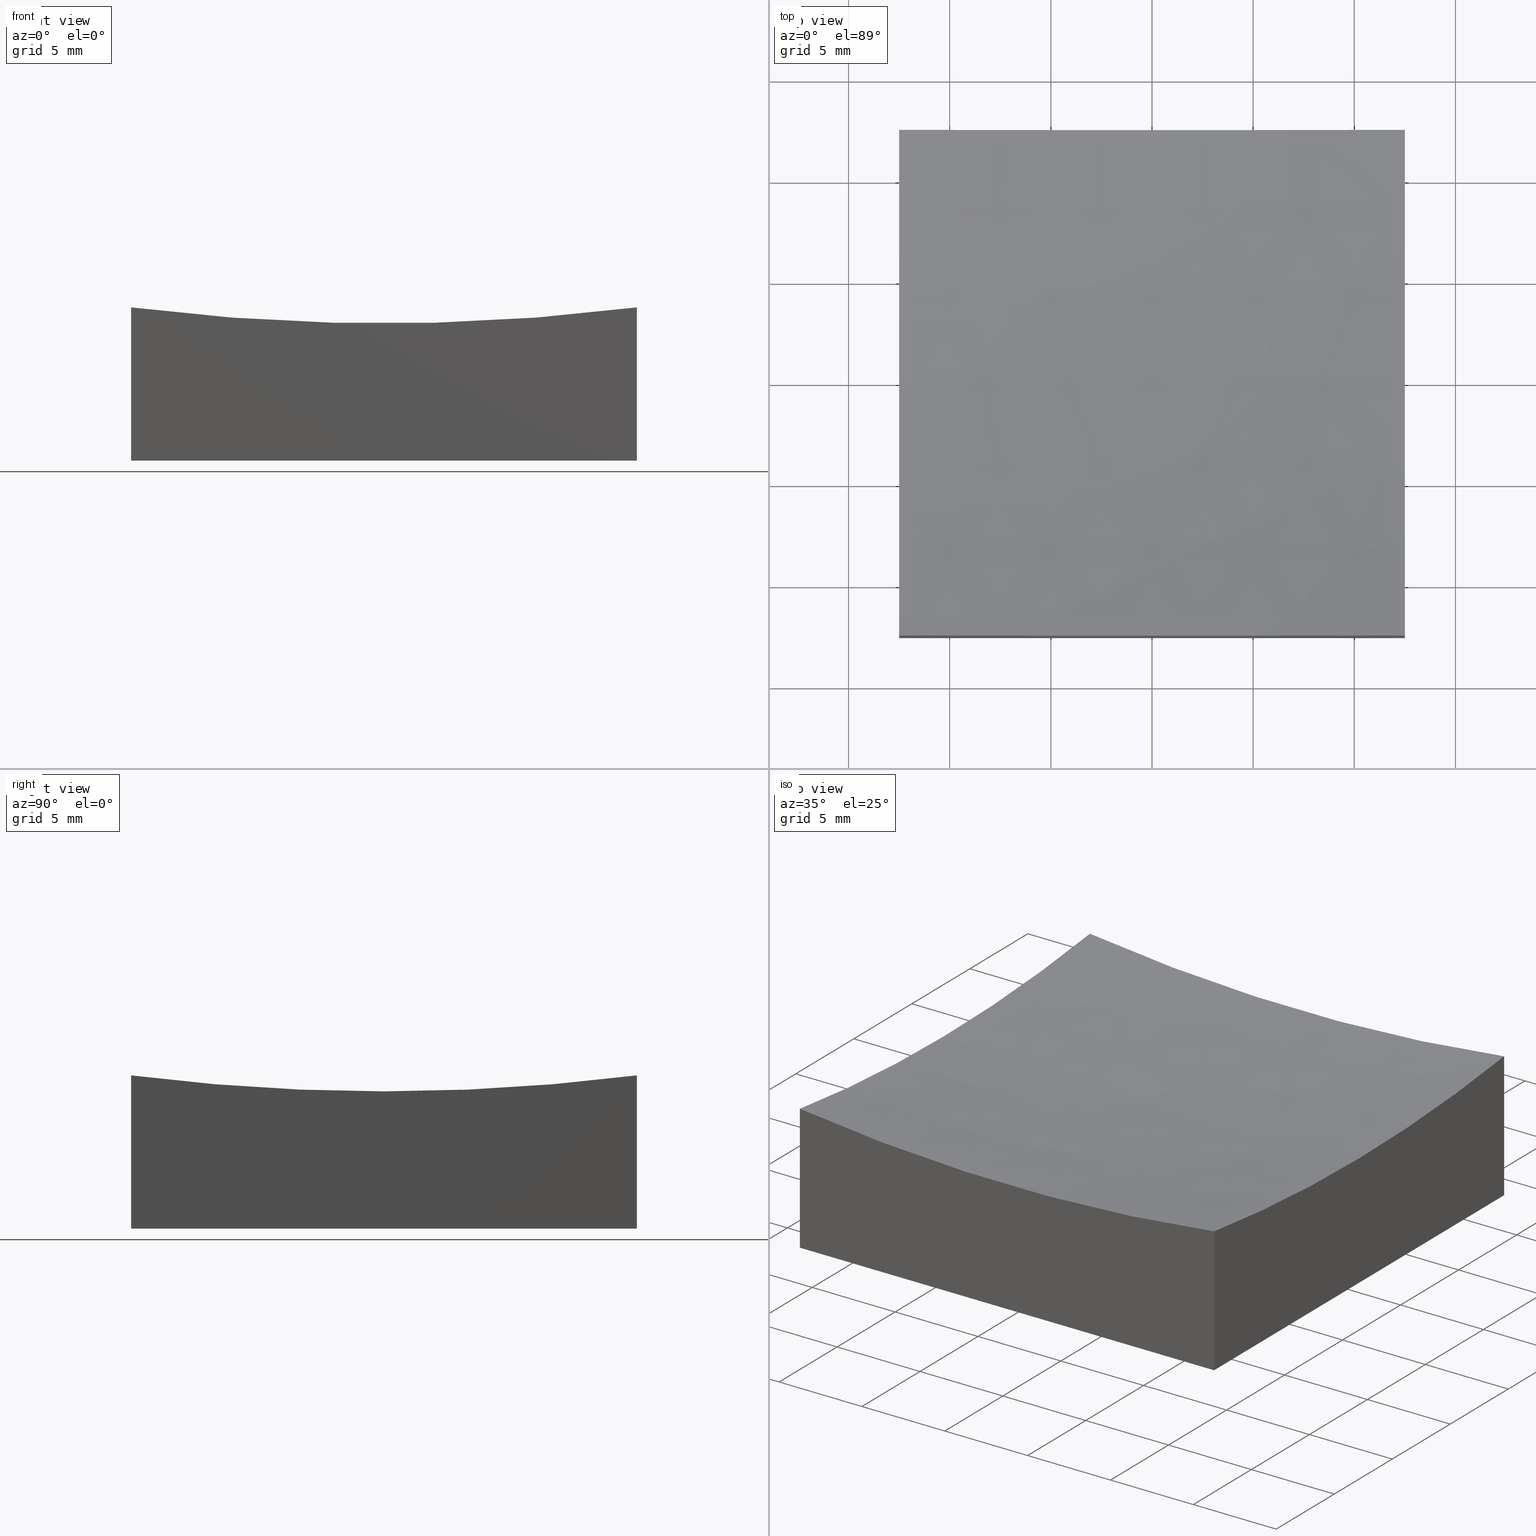
[diagram: canonical four-view strip — front | top / right | iso, engineering-drawing reading convention]
A machine part, canonical four-view strip (front | top / right | iso — engineering-drawing reading convention). The complete STEP part file that produces these views, byte-faithful:
ISO-10303-21;
HEADER;
FILE_DESCRIPTION (( 'STEP AP214' ),
    '1' );
FILE_NAME ('270036.STEP',
    '2020-06-05T06:14:06',
    ( '' ),
    ( '' ),
    'SwSTEP 2.0',
    'SolidWorks 2019',
    '' );
FILE_SCHEMA (( 'AUTOMOTIVE_DESIGN' ));
ENDSEC;

DATA;
#1 = PLANE ( 'NONE',  #242 ) ;
#2 = EDGE_CURVE ( 'NONE', #195, #65, #44, .T. ) ;
#3 = VERTEX_POINT ( 'NONE', #179 ) ;
#4 = CLOSED_SHELL ( 'NONE', ( #208, #218, #223, #40, #145, #162, #36 ) ) ;
#5 = ORIENTED_EDGE ( 'NONE', *, *, #157, .T. ) ;
#6 = PRESENTATION_STYLE_ASSIGNMENT (( #235 ) ) ;
#7 = EDGE_CURVE ( 'NONE', #63, #31, #244, .T. ) ;
#8 = FACE_OUTER_BOUND ( 'NONE', #120, .T. ) ;
#9 = PRESENTATION_LAYER_ASSIGNMENT (  '', '', ( #66 ) ) ;
#10 = DIRECTION ( 'NONE',  ( 0.0000000000000000000, -0.0000000000000000000, 1.000000000000000000 ) ) ;
#11 = DIRECTION ( 'NONE',  ( 1.000000000000000000, 0.0000000000000000000, 0.0000000000000000000 ) ) ;
#12 = VERTEX_POINT ( 'NONE', #100 ) ;
#13 = EDGE_LOOP ( 'NONE', ( #98, #95, #137, #45, #203 ) ) ;
#14 = DIRECTION ( 'NONE',  ( -1.398749534750525041E-16, 1.000000000000000000, 0.0000000000000000000 ) ) ;
#15 = AXIS2_PLACEMENT_3D ( 'NONE', #226, #209, #14 ) ;
#16 = DIRECTION ( 'NONE',  ( -1.387778780781445676E-16, 1.000000000000000000, 0.0000000000000000000 ) ) ;
#17 = FACE_OUTER_BOUND ( 'NONE', #85, .T. ) ;
#18 = DIRECTION ( 'NONE',  ( -1.387778780781445676E-16, 1.000000000000000000, 0.0000000000000000000 ) ) ;
#19 = APPLICATION_CONTEXT ( 'automotive_design' ) ;
#20 = SPHERICAL_SURFACE ( 'NONE', #39, 100.0000000000000142 ) ;
#21 = EDGE_LOOP ( 'NONE', ( #22, #83, #243, #118 ) ) ;
#22 = ORIENTED_EDGE ( 'NONE', *, *, #2, .T. ) ;
#23 = DIRECTION ( 'NONE',  ( 0.0000000000000000000, 0.0000000000000000000, 1.000000000000000000 ) ) ;
#24 = APPLICATION_PROTOCOL_DEFINITION ( 'draft international standard', 'automotive_design', 1998, #75 ) ;
#25 = PLANE ( 'NONE',  #50 ) ;
#26 = VERTEX_POINT ( 'NONE', #237 ) ;
#27 = EDGE_CURVE ( 'NONE', #195, #63, #135, .T. ) ;
#28 = ORIENTED_EDGE ( 'NONE', *, *, #159, .T. ) ;
#29 = FACE_OUTER_BOUND ( 'NONE', #174, .T. ) ;
#30 = AXIS2_PLACEMENT_3D ( 'NONE', #89, #124, #142 ) ;
#31 = VERTEX_POINT ( 'NONE', #67 ) ;
#32 = DIRECTION ( 'NONE',  ( 1.000000000000000000, 1.387778780781445676E-16, -0.0000000000000000000 ) ) ;
#33 = CARTESIAN_POINT ( 'NONE',  ( -12.49999999999999645, -12.50000000000000000, 20.00000000000000000 ) ) ;
#34 = FILL_AREA_STYLE_COLOUR ( '', #131 ) ;
#35 = CIRCLE ( 'NONE', #194, 99.21567416492216296 ) ;
#36 = ADVANCED_FACE ( 'NONE', ( #29 ), #225, .F. ) ;
#37 = CARTESIAN_POINT ( 'NONE',  ( 1.298125607096194621E-14, 0.0000000000000000000, 106.0000000000000142 ) ) ;
#38 = DIRECTION ( 'NONE',  ( -0.0000000000000000000, -0.0000000000000000000, -1.000000000000000000 ) ) ;
#39 = AXIS2_PLACEMENT_3D ( 'NONE', #37, #69, #126 ) ;
#40 = ADVANCED_FACE ( 'NONE', ( #8 ), #25, .F. ) ;
#41 = PRESENTATION_LAYER_ASSIGNMENT (  '', '', ( #148 ) ) ;
#42 =( NAMED_UNIT ( * ) PLANE_ANGLE_UNIT ( ) SI_UNIT ( $, .RADIAN. ) );
#43 = FILL_AREA_STYLE_COLOUR ( '', #236 ) ;
#44 = LINE ( 'NONE', #116, #204 ) ;
#45 = ORIENTED_EDGE ( 'NONE', *, *, #59, .F. ) ;
#46 = CIRCLE ( 'NONE', #30, 100.0000000000000142 ) ;
#47 = ORIENTED_EDGE ( 'NONE', *, *, #27, .T. ) ;
#48 = ORIENTED_EDGE ( 'NONE', *, *, #55, .T. ) ;
#49 = ORIENTED_EDGE ( 'NONE', *, *, #183, .T. ) ;
#50 = AXIS2_PLACEMENT_3D ( 'NONE', #155, #177, #10 ) ;
#51 = CARTESIAN_POINT ( 'NONE',  ( -12.49999999999999645, -12.50000000000000000, 0.0000000000000000000 ) ) ;
#52 = FACE_OUTER_BOUND ( 'NONE', #173, .T. ) ;
#53 = DIRECTION ( 'NONE',  ( 1.000000000000000000, 1.387778780781445676E-16, -0.0000000000000000000 ) ) ;
#54 = CARTESIAN_POINT ( 'NONE',  ( 12.50000000000000355, -12.50000000000000000, 20.00000000000000000 ) ) ;
#55 = EDGE_CURVE ( 'NONE', #160, #61, #216, .T. ) ;
#56 = CARTESIAN_POINT ( 'NONE',  ( 12.50000000000000178, 1.734723475976805714E-15, 106.0000000000000142 ) ) ;
#57 = LINE ( 'NONE', #207, #221 ) ;
#58 = DIRECTION ( 'NONE',  ( 1.000000000000000000, 1.387778780781445676E-16, -0.0000000000000000000 ) ) ;
#59 = EDGE_CURVE ( 'NONE', #201, #65, #164, .T. ) ;
#60 = PRODUCT_DEFINITION_FORMATION_WITH_SPECIFIED_SOURCE ( '�κ�', '', #111, .NOT_KNOWN. ) ;
#61 = VERTEX_POINT ( 'NONE', #68 ) ;
#62 = AXIS2_PLACEMENT_3D ( 'NONE', #125, #212, #169 ) ;
#63 = VERTEX_POINT ( 'NONE', #51 ) ;
#64 = VERTEX_POINT ( 'NONE', #139 ) ;
#65 = VERTEX_POINT ( 'NONE', #184 ) ;
#66 = STYLED_ITEM ( 'NONE', ( #6 ), #130 ) ;
#67 = CARTESIAN_POINT ( 'NONE',  ( 12.50000000000000355, -12.50000000000000000, 0.0000000000000000000 ) ) ;
#68 = CARTESIAN_POINT ( 'NONE',  ( -12.49999999999999822, 1.530808498934191521E-15, 6.784325835077840594 ) ) ;
#69 = DIRECTION ( 'NONE',  ( 0.0000000000000000000, 1.000000000000000000, 0.0000000000000000000 ) ) ;
#70 =( GEOMETRIC_REPRESENTATION_CONTEXT ( 3 ) GLOBAL_UNCERTAINTY_ASSIGNED_CONTEXT ( ( #152 ) ) GLOBAL_UNIT_ASSIGNED_CONTEXT ( ( #166, #229, #168 ) ) REPRESENTATION_CONTEXT ( 'NONE', 'WORKASPACE' ) );
#71 = CIRCLE ( 'NONE', #62, 99.21567416492216296 ) ;
#72 = CARTESIAN_POINT ( 'NONE',  ( -12.49999999999999822, -1.734723475976808672E-15, 106.0000000000000142 ) ) ;
#73 = DIRECTION ( 'NONE',  ( 1.000000000000000000, 1.387778780781445676E-16, -0.0000000000000000000 ) ) ;
#74 = DIRECTION ( 'NONE',  ( -1.398749534750525041E-16, 1.000000000000000000, 0.0000000000000000000 ) ) ;
#75 = APPLICATION_CONTEXT ( 'automotive_design' ) ;
#76 = CARTESIAN_POINT ( 'NONE',  ( -12.50000000000000000, 12.50000000000000000, 20.00000000000000000 ) ) ;
#77 = CIRCLE ( 'NONE', #213, 99.21567416492216296 ) ;
#78 = DIRECTION ( 'NONE',  ( -1.398749534750525041E-16, 1.000000000000000000, 0.0000000000000000000 ) ) ;
#79 = VECTOR ( 'NONE', #186, 1000.000000000000000 ) ;
#80 = CARTESIAN_POINT ( 'NONE',  ( 1.298125607096194621E-14, 0.0000000000000000000, 106.0000000000000142 ) ) ;
#81 = UNCERTAINTY_MEASURE_WITH_UNIT (LENGTH_MEASURE( 1.000000000000000082E-05 ), #163, 'distance_accuracy_value', 'NONE');
#82 = ORIENTED_EDGE ( 'NONE', *, *, #199, .F. ) ;
#83 = ORIENTED_EDGE ( 'NONE', *, *, #241, .T. ) ;
#84 = ORIENTED_EDGE ( 'NONE', *, *, #119, .F. ) ;
#85 = EDGE_LOOP ( 'NONE', ( #205, #49, #198, #28, #47 ) ) ;
#86 = FACE_OUTER_BOUND ( 'NONE', #13, .T. ) ;
#87 = AXIS2_PLACEMENT_3D ( 'NONE', #114, #23, #153 ) ;
#88 = EDGE_CURVE ( 'NONE', #3, #64, #146, .T. ) ;
#89 = CARTESIAN_POINT ( 'NONE',  ( 1.298125607096194621E-14, 0.0000000000000000000, 106.0000000000000142 ) ) ;
#90 = CARTESIAN_POINT ( 'NONE',  ( 0.0000000000000000000, 0.0000000000000000000, 0.0000000000000000000 ) ) ;
#91 = VECTOR ( 'NONE', #127, 1000.000000000000000 ) ;
#92 = CARTESIAN_POINT ( 'NONE',  ( -12.50000000000000000, 12.50000000000000000, 20.00000000000000000 ) ) ;
#93 = ORIENTED_EDGE ( 'NONE', *, *, #88, .T. ) ;
#94 = VECTOR ( 'NONE', #11, 1000.000000000000000 ) ;
#95 = ORIENTED_EDGE ( 'NONE', *, *, #199, .T. ) ;
#96 = PRODUCT_DEFINITION_CONTEXT ( 'detailed design', #19, 'design' ) ;
#97 = PRODUCT_CONTEXT ( 'NONE', #75, 'mechanical' ) ;
#98 = ORIENTED_EDGE ( 'NONE', *, *, #88, .F. ) ;
#99 = CARTESIAN_POINT ( 'NONE',  ( 1.298125607096194621E-14, 0.0000000000000000000, 106.0000000000000142 ) ) ;
#100 = CARTESIAN_POINT ( 'NONE',  ( -12.50000000000000000, 12.50000000000000000, 7.574901574852354713 ) ) ;
#101 = AXIS2_PLACEMENT_3D ( 'NONE', #228, #53, #16 ) ;
#102 = PRESENTATION_STYLE_ASSIGNMENT (( #143 ) ) ;
#103 = DIRECTION ( 'NONE',  ( 0.0000000000000000000, 1.000000000000000000, 0.0000000000000000000 ) ) ;
#104 = DIRECTION ( 'NONE',  ( 0.0000000000000000000, 0.0000000000000000000, -1.000000000000000000 ) ) ;
#105 = PRODUCT_RELATED_PRODUCT_CATEGORY ( 'part', '', ( #111 ) ) ;
#106 = FILL_AREA_STYLE ('',( #34 ) ) ;
#107 = FACE_OUTER_BOUND ( 'NONE', #21, .T. ) ;
#108 = AXIS2_PLACEMENT_3D ( 'NONE', #92, #233, #144 ) ;
#109 =( NAMED_UNIT ( * ) PLANE_ANGLE_UNIT ( ) SI_UNIT ( $, .RADIAN. ) );
#110 = DIRECTION ( 'NONE',  ( -1.000000000000000000, 0.0000000000000000000, -0.0000000000000000000 ) ) ;
#111 = PRODUCT ( '270036', '270036', '', ( #97 ) ) ;
#112 = LINE ( 'NONE', #193, #252 ) ;
#113 = VECTOR ( 'NONE', #245, 1000.000000000000000 ) ;
#114 = CARTESIAN_POINT ( 'NONE',  ( 0.0000000000000000000, 0.0000000000000000000, 0.0000000000000000000 ) ) ;
#115 =( LENGTH_UNIT ( ) NAMED_UNIT ( * ) SI_UNIT ( .MILLI., .METRE. ) );
#116 = CARTESIAN_POINT ( 'NONE',  ( -12.50000000000000000, 12.50000000000000000, 0.0000000000000000000 ) ) ;
#117 = AXIS2_PLACEMENT_3D ( 'NONE', #99, #158, #222 ) ;
#118 = ORIENTED_EDGE ( 'NONE', *, *, #27, .F. ) ;
#119 = EDGE_CURVE ( 'NONE', #160, #64, #46, .T. ) ;
#120 = EDGE_LOOP ( 'NONE', ( #82, #234, #214, #224 ) ) ;
#121 = EDGE_LOOP ( 'NONE', ( #84, #48, #240, #132, #93 ) ) ;
#122 = ORIENTED_EDGE ( 'NONE', *, *, #119, .T. ) ;
#123 = MECHANICAL_DESIGN_GEOMETRIC_PRESENTATION_REPRESENTATION (  '', ( #66 ), #165 ) ;
#124 = DIRECTION ( 'NONE',  ( 0.0000000000000000000, -1.000000000000000000, -0.0000000000000000000 ) ) ;
#125 = CARTESIAN_POINT ( 'NONE',  ( 1.298125607096194621E-14, 12.50000000000000000, 106.0000000000000142 ) ) ;
#126 = DIRECTION ( 'NONE',  ( 1.000000000000000000, 0.0000000000000000000, -1.387778780781445429E-16 ) ) ;
#127 = DIRECTION ( 'NONE',  ( -0.0000000000000000000, -0.0000000000000000000, -1.000000000000000000 ) ) ;
#128 = EDGE_CURVE ( 'NONE', #61, #12, #246, .T. ) ;
#129 = CARTESIAN_POINT ( 'NONE',  ( 12.50000000000000000, 12.50000000000000000, 7.574901574852354713 ) ) ;
#130 = ADVANCED_BREP_SHAPE_REPRESENTATION ( '270036', ( #150, #87 ), #70 ) ;
#131 = COLOUR_RGB ( '',1.000000000000000000, 1.000000000000000000, 1.000000000000000000 ) ;
#132 = ORIENTED_EDGE ( 'NONE', *, *, #136, .F. ) ;
#133 = CARTESIAN_POINT ( 'NONE',  ( -12.49999999999999645, -12.50000000000000000, 0.0000000000000000000 ) ) ;
#134 = AXIS2_PLACEMENT_3D ( 'NONE', #76, #58, #18 ) ;
#135 = LINE ( 'NONE', #156, #210 ) ;
#136 = EDGE_CURVE ( 'NONE', #3, #26, #77, .T. ) ;
#137 = ORIENTED_EDGE ( 'NONE', *, *, #241, .F. ) ;
#138 = DIRECTION ( 'NONE',  ( 1.387778780781445676E-16, -1.000000000000000000, 0.0000000000000000000 ) ) ;
#139 = CARTESIAN_POINT ( 'NONE',  ( 12.50000000000000355, 9.629649721936179265E-32, 6.784325835077840594 ) ) ;
#140 = LINE ( 'NONE', #33, #91 ) ;
#141 = AXIS2_PLACEMENT_3D ( 'NONE', #80, #182, #180 ) ;
#142 = DIRECTION ( 'NONE',  ( 0.0000000000000000000, 0.0000000000000000000, -1.000000000000000000 ) ) ;
#143 = SURFACE_STYLE_USAGE ( .BOTH. , #167 ) ;
#144 = DIRECTION ( 'NONE',  ( 0.0000000000000000000, -0.0000000000000000000, 1.000000000000000000 ) ) ;
#145 = ADVANCED_FACE ( 'NONE', ( #86 ), #248, .T. ) ;
#146 = CIRCLE ( 'NONE', #15, 99.21567416492216296 ) ;
#147 = FACE_OUTER_BOUND ( 'NONE', #121, .T. ) ;
#148 = STYLED_ITEM ( 'NONE', ( #102 ), #150 ) ;
#149 = ORIENTED_EDGE ( 'NONE', *, *, #2, .F. ) ;
#150 = MANIFOLD_SOLID_BREP ( '�г�-��ת2', #4 ) ;
#151 = FILL_AREA_STYLE ('',( #43 ) ) ;
#152 = UNCERTAINTY_MEASURE_WITH_UNIT (LENGTH_MEASURE( 1.000000000000000082E-05 ), #166, 'distance_accuracy_value', 'NONE');
#153 = DIRECTION ( 'NONE',  ( 1.000000000000000000, 0.0000000000000000000, 0.0000000000000000000 ) ) ;
#154 = MECHANICAL_DESIGN_GEOMETRIC_PRESENTATION_REPRESENTATION (  '', ( #148 ), #188 ) ;
#155 = CARTESIAN_POINT ( 'NONE',  ( -12.49999999999999645, -12.50000000000000000, 20.00000000000000000 ) ) ;
#156 = CARTESIAN_POINT ( 'NONE',  ( -12.50000000000000000, 12.50000000000000000, 0.0000000000000000000 ) ) ;
#157 = EDGE_CURVE ( 'NONE', #201, #12, #71, .T. ) ;
#158 = DIRECTION ( 'NONE',  ( 1.224646799147353207E-16, 1.000000000000000000, -9.838134886674483045E-33 ) ) ;
#159 = EDGE_CURVE ( 'NONE', #12, #195, #112, .T. ) ;
#160 = VERTEX_POINT ( 'NONE', #170 ) ;
#161 = DIRECTION ( 'NONE',  ( 1.000000000000000000, 0.0000000000000000000, 0.0000000000000000000 ) ) ;
#162 = ADVANCED_FACE ( 'NONE', ( #107 ), #1, .T. ) ;
#163 =( LENGTH_UNIT ( ) NAMED_UNIT ( * ) SI_UNIT ( .MILLI., .METRE. ) );
#164 = LINE ( 'NONE', #250, #113 ) ;
#165 =( GEOMETRIC_REPRESENTATION_CONTEXT ( 3 ) GLOBAL_UNCERTAINTY_ASSIGNED_CONTEXT ( ( #197 ) ) GLOBAL_UNIT_ASSIGNED_CONTEXT ( ( #115, #42, #215 ) ) REPRESENTATION_CONTEXT ( 'NONE', 'WORKASPACE' ) );
#166 =( LENGTH_UNIT ( ) NAMED_UNIT ( * ) SI_UNIT ( .MILLI., .METRE. ) );
#167 = SURFACE_SIDE_STYLE ('',( #187 ) ) ;
#168 =( NAMED_UNIT ( * ) SI_UNIT ( $, .STERADIAN. ) SOLID_ANGLE_UNIT ( ) );
#169 = DIRECTION ( 'NONE',  ( 0.0000000000000000000, 0.0000000000000000000, 1.000000000000000000 ) ) ;
#170 = CARTESIAN_POINT ( 'NONE',  ( 1.107104328553358190E-14, 0.0000000000000000000, 5.999999999999991118 ) ) ;
#171 = AXIS2_PLACEMENT_3D ( 'NONE', #72, #32, #74 ) ;
#172 = PLANE ( 'NONE',  #134 ) ;
#173 = EDGE_LOOP ( 'NONE', ( #196, #239, #149, #217 ) ) ;
#174 = EDGE_LOOP ( 'NONE', ( #176, #122, #200, #5, #220 ) ) ;
#175 = SURFACE_STYLE_FILL_AREA ( #151 ) ;
#176 = ORIENTED_EDGE ( 'NONE', *, *, #55, .F. ) ;
#177 = DIRECTION ( 'NONE',  ( 0.0000000000000000000, 1.000000000000000000, 0.0000000000000000000 ) ) ;
#178 = SURFACE_SIDE_STYLE ('',( #175 ) ) ;
#179 = CARTESIAN_POINT ( 'NONE',  ( 12.50000000000000355, -12.50000000000000000, 7.574901574852354713 ) ) ;
#180 = DIRECTION ( 'NONE',  ( 1.000000000000000000, 0.0000000000000000000, -1.387778780781445429E-16 ) ) ;
#181 = AXIS2_PLACEMENT_3D ( 'NONE', #232, #192, #78 ) ;
#182 = DIRECTION ( 'NONE',  ( 0.0000000000000000000, 1.000000000000000000, 0.0000000000000000000 ) ) ;
#183 = EDGE_CURVE ( 'NONE', #26, #61, #231, .T. ) ;
#184 = CARTESIAN_POINT ( 'NONE',  ( 12.50000000000000000, 12.50000000000000000, 0.0000000000000000000 ) ) ;
#185 = DIRECTION ( 'NONE',  ( 0.0000000000000000000, 0.0000000000000000000, 1.000000000000000000 ) ) ;
#186 = DIRECTION ( 'NONE',  ( -0.0000000000000000000, -0.0000000000000000000, -1.000000000000000000 ) ) ;
#187 = SURFACE_STYLE_FILL_AREA ( #106 ) ;
#188 =( GEOMETRIC_REPRESENTATION_CONTEXT ( 3 ) GLOBAL_UNCERTAINTY_ASSIGNED_CONTEXT ( ( #81 ) ) GLOBAL_UNIT_ASSIGNED_CONTEXT ( ( #163, #109, #191 ) ) REPRESENTATION_CONTEXT ( 'NONE', 'WORKASPACE' ) );
#189 = CARTESIAN_POINT ( 'NONE',  ( -12.50000000000000000, 12.50000000000000000, 0.0000000000000000000 ) ) ;
#190 = PRODUCT_DEFINITION_SHAPE ( 'NONE', 'NONE',  #202 ) ;
#191 =( NAMED_UNIT ( * ) SI_UNIT ( $, .STERADIAN. ) SOLID_ANGLE_UNIT ( ) );
#192 = DIRECTION ( 'NONE',  ( 1.000000000000000000, 1.387778780781445676E-16, -0.0000000000000000000 ) ) ;
#193 = CARTESIAN_POINT ( 'NONE',  ( -12.50000000000000000, 12.50000000000000000, 20.00000000000000000 ) ) ;
#194 = AXIS2_PLACEMENT_3D ( 'NONE', #56, #73, #211 ) ;
#195 = VERTEX_POINT ( 'NONE', #189 ) ;
#196 = ORIENTED_EDGE ( 'NONE', *, *, #157, .F. ) ;
#197 = UNCERTAINTY_MEASURE_WITH_UNIT (LENGTH_MEASURE( 1.000000000000000082E-05 ), #115, 'distance_accuracy_value', 'NONE');
#198 = ORIENTED_EDGE ( 'NONE', *, *, #128, .T. ) ;
#199 = EDGE_CURVE ( 'NONE', #3, #31, #227, .T. ) ;
#200 = ORIENTED_EDGE ( 'NONE', *, *, #247, .T. ) ;
#201 = VERTEX_POINT ( 'NONE', #129 ) ;
#202 = PRODUCT_DEFINITION ( 'δ֪', '', #60, #96 ) ;
#203 = ORIENTED_EDGE ( 'NONE', *, *, #247, .F. ) ;
#204 = VECTOR ( 'NONE', #161, 1000.000000000000000 ) ;
#205 = ORIENTED_EDGE ( 'NONE', *, *, #251, .F. ) ;
#206 = CARTESIAN_POINT ( 'NONE',  ( 1.298125607096194621E-14, -12.50000000000000000, 106.0000000000000142 ) ) ;
#207 = CARTESIAN_POINT ( 'NONE',  ( 12.50000000000000000, 12.50000000000000000, 0.0000000000000000000 ) ) ;
#208 = ADVANCED_FACE ( 'NONE', ( #147 ), #20, .F. ) ;
#209 = DIRECTION ( 'NONE',  ( 1.000000000000000000, 1.387778780781445676E-16, -0.0000000000000000000 ) ) ;
#210 = VECTOR ( 'NONE', #138, 1000.000000000000000 ) ;
#211 = DIRECTION ( 'NONE',  ( -1.398749534750525041E-16, 1.000000000000000000, 0.0000000000000000000 ) ) ;
#212 = DIRECTION ( 'NONE',  ( 0.0000000000000000000, 1.000000000000000000, 0.0000000000000000000 ) ) ;
#213 = AXIS2_PLACEMENT_3D ( 'NONE', #206, #103, #185 ) ;
#214 = ORIENTED_EDGE ( 'NONE', *, *, #251, .T. ) ;
#215 =( NAMED_UNIT ( * ) SI_UNIT ( $, .STERADIAN. ) SOLID_ANGLE_UNIT ( ) );
#216 = CIRCLE ( 'NONE', #117, 100.0000000000000142 ) ;
#217 = ORIENTED_EDGE ( 'NONE', *, *, #159, .F. ) ;
#218 = ADVANCED_FACE ( 'NONE', ( #52 ), #230, .T. ) ;
#219 = APPLICATION_PROTOCOL_DEFINITION ( 'draft international standard', 'automotive_design', 1998, #19 ) ;
#220 = ORIENTED_EDGE ( 'NONE', *, *, #128, .F. ) ;
#221 = VECTOR ( 'NONE', #249, 1000.000000000000000 ) ;
#222 = DIRECTION ( 'NONE',  ( -1.000000000000000000, 1.224646799147353207E-16, 0.0000000000000000000 ) ) ;
#223 = ADVANCED_FACE ( 'NONE', ( #17 ), #172, .F. ) ;
#224 = ORIENTED_EDGE ( 'NONE', *, *, #7, .T. ) ;
#225 = SPHERICAL_SURFACE ( 'NONE', #141, 100.0000000000000142 ) ;
#226 = CARTESIAN_POINT ( 'NONE',  ( 12.50000000000000178, 1.734723475976805714E-15, 106.0000000000000142 ) ) ;
#227 = LINE ( 'NONE', #54, #79 ) ;
#228 = CARTESIAN_POINT ( 'NONE',  ( 12.50000000000000000, 12.50000000000000000, 20.00000000000000000 ) ) ;
#229 =( NAMED_UNIT ( * ) PLANE_ANGLE_UNIT ( ) SI_UNIT ( $, .RADIAN. ) );
#230 = PLANE ( 'NONE',  #108 ) ;
#231 = CIRCLE ( 'NONE', #181, 99.21567416492216296 ) ;
#232 = CARTESIAN_POINT ( 'NONE',  ( -12.49999999999999822, -1.734723475976808672E-15, 106.0000000000000142 ) ) ;
#233 = DIRECTION ( 'NONE',  ( 0.0000000000000000000, 1.000000000000000000, 0.0000000000000000000 ) ) ;
#234 = ORIENTED_EDGE ( 'NONE', *, *, #136, .T. ) ;
#235 = SURFACE_STYLE_USAGE ( .BOTH. , #178 ) ;
#236 = COLOUR_RGB ( '',1.000000000000000000, 1.000000000000000000, 1.000000000000000000 ) ;
#237 = CARTESIAN_POINT ( 'NONE',  ( -12.49999999999999645, -12.50000000000000000, 7.574901574852354713 ) ) ;
#238 = SHAPE_DEFINITION_REPRESENTATION ( #190, #130 ) ;
#239 = ORIENTED_EDGE ( 'NONE', *, *, #59, .T. ) ;
#240 = ORIENTED_EDGE ( 'NONE', *, *, #183, .F. ) ;
#241 = EDGE_CURVE ( 'NONE', #65, #31, #57, .T. ) ;
#242 = AXIS2_PLACEMENT_3D ( 'NONE', #90, #104, #110 ) ;
#243 = ORIENTED_EDGE ( 'NONE', *, *, #7, .F. ) ;
#244 = LINE ( 'NONE', #133, #94 ) ;
#245 = DIRECTION ( 'NONE',  ( -0.0000000000000000000, -0.0000000000000000000, -1.000000000000000000 ) ) ;
#246 = CIRCLE ( 'NONE', #171, 99.21567416492216296 ) ;
#247 = EDGE_CURVE ( 'NONE', #64, #201, #35, .T. ) ;
#248 = PLANE ( 'NONE',  #101 ) ;
#249 = DIRECTION ( 'NONE',  ( 1.387778780781445676E-16, -1.000000000000000000, 0.0000000000000000000 ) ) ;
#250 = CARTESIAN_POINT ( 'NONE',  ( 12.50000000000000000, 12.50000000000000000, 20.00000000000000000 ) ) ;
#251 = EDGE_CURVE ( 'NONE', #26, #63, #140, .T. ) ;
#252 = VECTOR ( 'NONE', #38, 1000.000000000000000 ) ;
ENDSEC;
END-ISO-10303-21;
